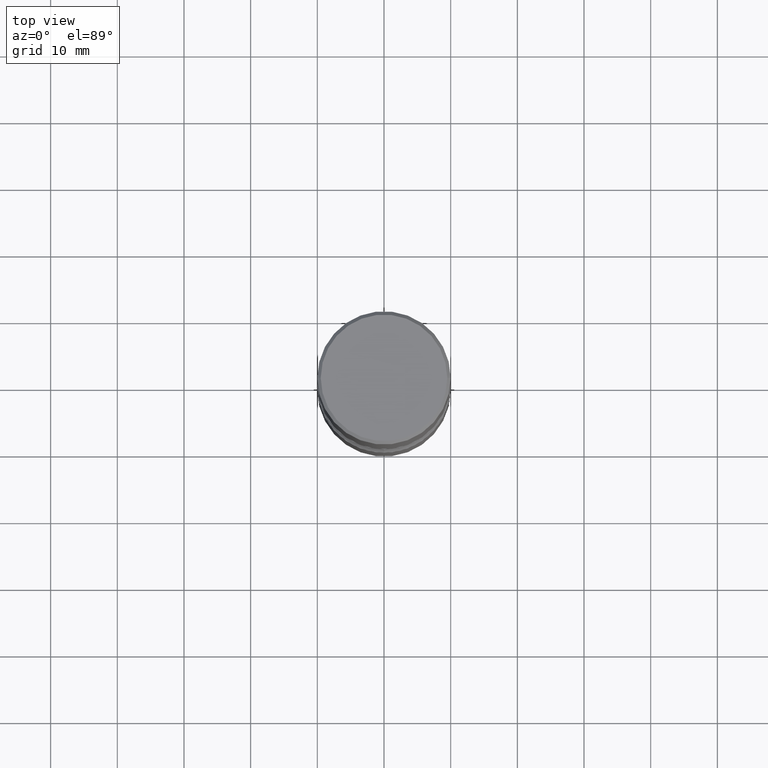
[diagram: clean part render]
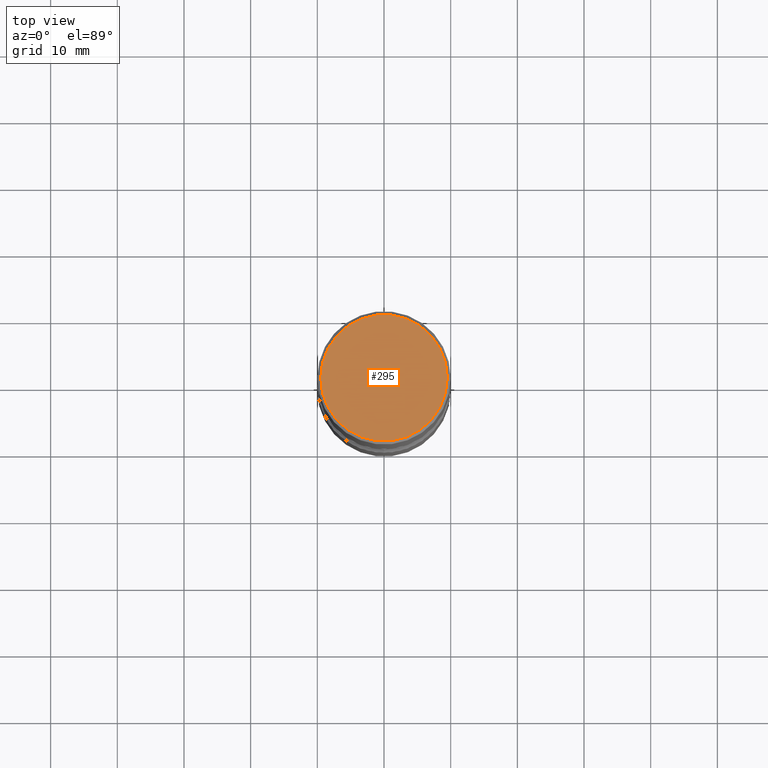
[diagram: same view with one face highlighted and labeled with its STEP entity id]
A machine part, top view. The second image highlights one B-rep face of the part: STEP entity #295.
In plain terms, the highlighted planar face has unit normal (0, -0, -1).
Its self-contained STEP definition (entity closure, byte-faithful):
#3 = CARTESIAN_POINT ( 'NONE',  ( 0.3737000000000003097, -2.667287895133370725E-15, -1.280553747028278189E-17 ) ) ;
#60 = CARTESIAN_POINT ( 'NONE',  ( -0.3737000000000003097, 2.644447966039791425E-15, -1.280553747031960567E-17 ) ) ;
#71 = FACE_OUTER_BOUND ( 'NONE', #367, .T. ) ;
#81 = AXIS2_PLACEMENT_3D ( 'NONE', #480, #216, #256 ) ;
#182 = ORIENTED_EDGE ( 'NONE', *, *, #281, .T. ) ;
#186 = DIRECTION ( 'NONE',  ( -1.000000000000000000, 6.982962677686265922E-15, -4.876176775795935793E-29 ) ) ;
#193 = ORIENTED_EDGE ( 'NONE', *, *, #456, .T. ) ;
#195 = DIRECTION ( 'NONE',  ( 1.000000000000000000, -6.982962677686266711E-15, 4.876212485538971195E-29 ) ) ;
#209 = AXIS2_PLACEMENT_3D ( 'NONE', #363, #441, #186 ) ;
#216 = DIRECTION ( 'NONE',  ( -2.445468806185136597E-29, 3.491481338843145583E-15, 1.000000000000000000 ) ) ;
#256 = DIRECTION ( 'NONE',  ( 1.000000000000000000, -6.982962677686266711E-15, 4.876212485538971195E-29 ) ) ;
#281 = EDGE_CURVE ( 'NONE', #507, #470, #401, .T. ) ;
#295 = ADVANCED_FACE ( 'NONE', ( #71 ), #314, .F. ) ;
#314 = PLANE ( 'NONE',  #209 ) ;
#355 = CARTESIAN_POINT ( 'NONE',  ( 3.131554243005659264E-46, -4.471029511141341874E-32, -1.280553747030123384E-17 ) ) ;
#363 = CARTESIAN_POINT ( 'NONE',  ( 2.609533152651359776E-15, 0.3737000000000003097, -1.311169345060835261E-15 ) ) ;
#367 = EDGE_LOOP ( 'NONE', ( #193, #182 ) ) ;
#401 = CIRCLE ( 'NONE', #81, 0.3737000000000003097 ) ;
#431 = CIRCLE ( 'NONE', #489, 0.3737000000000003097 ) ;
#441 = DIRECTION ( 'NONE',  ( 2.438088387897960049E-29, -3.491481338843145188E-15, -1.000000000000000000 ) ) ;
#456 = EDGE_CURVE ( 'NONE', #470, #507, #431, .T. ) ;
#470 = VERTEX_POINT ( 'NONE', #60 ) ;
#480 = CARTESIAN_POINT ( 'NONE',  ( 3.131554243005659264E-46, -4.471029511141341874E-32, -1.280553747030123384E-17 ) ) ;
#489 = AXIS2_PLACEMENT_3D ( 'NONE', #355, #498, #195 ) ;
#498 = DIRECTION ( 'NONE',  ( -2.445468806185136597E-29, 3.491481338843145583E-15, 1.000000000000000000 ) ) ;
#507 = VERTEX_POINT ( 'NONE', #3 ) ;